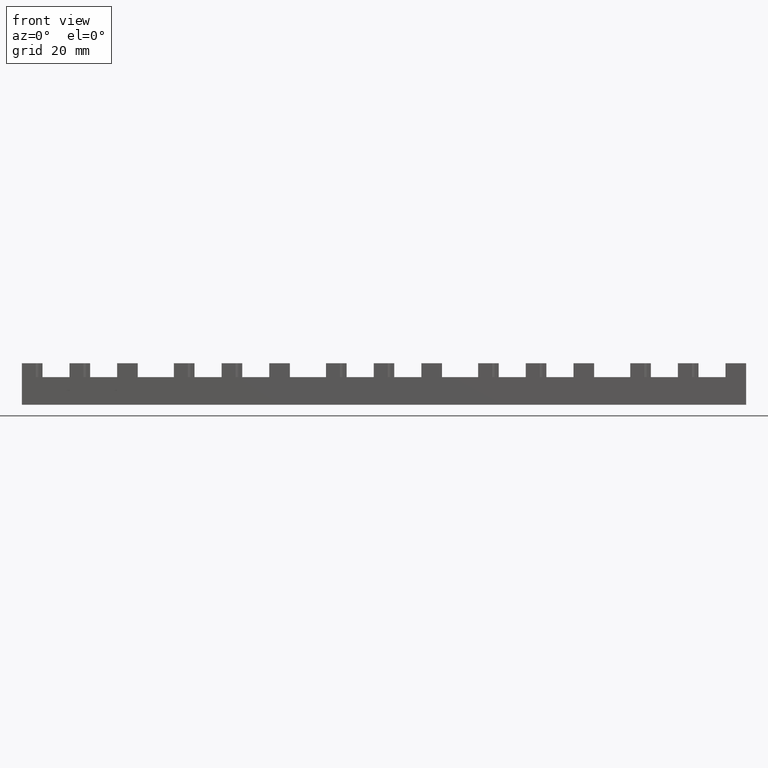
[diagram: clean part render]
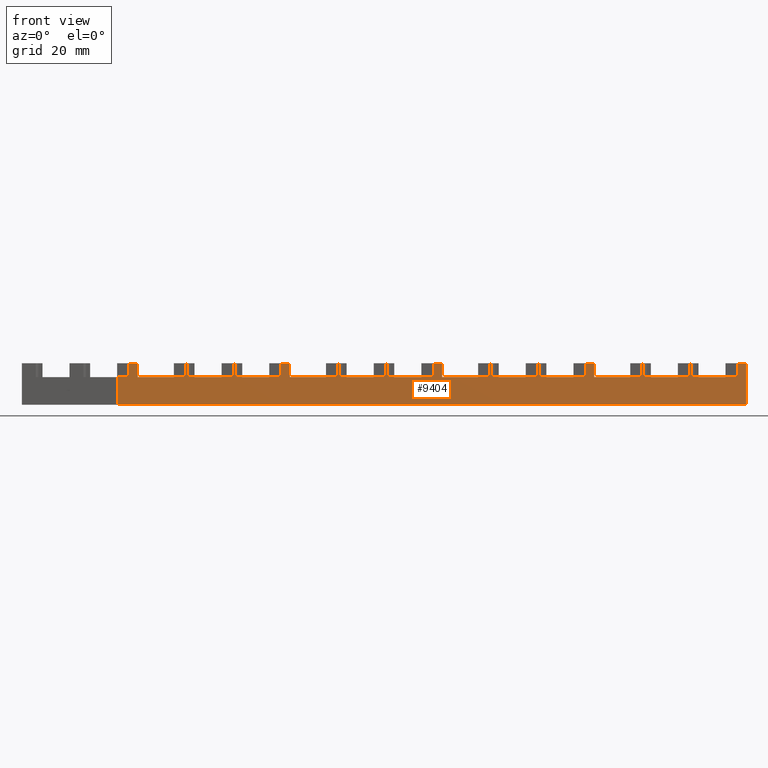
[diagram: same view with one face highlighted and labeled with its STEP entity id]
A machine part, front view. The second image highlights one B-rep face of the part: STEP entity #9404.
In plain terms, the highlighted planar face has unit normal (0, -1, 0).
Its self-contained STEP definition (entity closure, byte-faithful):
#5461=CARTESIAN_POINT('',(194.0999999999998,-7.999999999990964,103.99999999999096));
#5462=VERTEX_POINT('',#5461);
#5502=CARTESIAN_POINT('',(184.00000000000003,-7.999999999990864,103.99999999999103));
#5503=VERTEX_POINT('',#5502);
#5510=CARTESIAN_POINT('',(184.00000000000006,-7.999999999991028,103.99999999999103));
#5511=DIRECTION('',(1.0,0.0,0.0));
#5512=VECTOR('',#5511,10.099999999999795);
#5513=LINE('',#5510,#5512);
#5514=EDGE_CURVE('',#5503,#5462,#5513,.T.);
#5543=CARTESIAN_POINT('',(198.0999999999998,-7.999999999990992,103.99999999999093));
#5544=VERTEX_POINT('',#5543);
#5551=CARTESIAN_POINT('',(208.1999999999997,-7.999999999990878,103.99999999999085));
#5552=VERTEX_POINT('',#5551);
#5553=CARTESIAN_POINT('',(198.09999999999985,-7.999999999990934,103.99999999999093));
#5554=DIRECTION('',(1.0,0.0,0.0));
#5555=VECTOR('',#5554,10.099999999999909);
#5556=LINE('',#5553,#5555);
#5557=EDGE_CURVE('',#5544,#5552,#5556,.T.);
#5581=CARTESIAN_POINT('',(139.0,-7.999999999991162,103.99999999999132));
#5582=VERTEX_POINT('',#5581);
#5591=CARTESIAN_POINT('',(149.0999999999998,-7.999999999991262,103.99999999999125));
#5592=VERTEX_POINT('',#5591);
#5593=CARTESIAN_POINT('',(139.00000000000003,-7.999999999991327,103.99999999999133));
#5594=DIRECTION('',(1.0,0.0,0.0));
#5595=VECTOR('',#5594,10.099999999999795);
#5596=LINE('',#5593,#5595);
#5597=EDGE_CURVE('',#5582,#5592,#5596,.T.);
#5640=CARTESIAN_POINT('',(153.0999999999998,-7.999999999991291,103.99999999999123));
#5641=VERTEX_POINT('',#5640);
#5648=CARTESIAN_POINT('',(163.1999999999997,-7.999999999991177,103.99999999999118));
#5649=VERTEX_POINT('',#5648);
#5650=CARTESIAN_POINT('',(153.09999999999982,-7.999999999991234,103.99999999999123));
#5651=DIRECTION('',(1.0,0.0,0.0));
#5652=VECTOR('',#5651,10.099999999999909);
#5653=LINE('',#5650,#5652);
#5654=EDGE_CURVE('',#5641,#5649,#5653,.T.);
#5672=CARTESIAN_POINT('',(169.29999999999976,-7.999999999999021,103.99999999999112));
#5673=VERTEX_POINT('',#5672);
#5680=CARTESIAN_POINT('',(179.99999999999997,-7.999999999991063,103.99999999999103));
#5681=VERTEX_POINT('',#5680);
#5682=CARTESIAN_POINT('',(169.29999999999976,-7.999999999991125,103.99999999999113));
#5683=DIRECTION('',(1.0,0.0,0.0));
#5684=VECTOR('',#5683,10.700000000000216);
#5685=LINE('',#5682,#5684);
#5686=EDGE_CURVE('',#5673,#5681,#5685,.T.);
#5735=CARTESIAN_POINT('',(108.09999999999981,-7.999999999991588,103.99999999999153));
#5736=VERTEX_POINT('',#5735);
#5745=CARTESIAN_POINT('',(118.19999999999972,-7.999999999991475,103.99999999999146));
#5746=VERTEX_POINT('',#5745);
#5747=CARTESIAN_POINT('',(108.09999999999982,-7.999999999991532,103.99999999999154));
#5748=DIRECTION('',(1.0,0.0,0.0));
#5749=VECTOR('',#5748,10.099999999999909);
#5750=LINE('',#5747,#5749);
#5751=EDGE_CURVE('',#5736,#5746,#5750,.T.);
#5769=CARTESIAN_POINT('',(124.29999999999976,-7.99999999999932,103.99999999999142));
#5770=VERTEX_POINT('',#5769);
#5777=CARTESIAN_POINT('',(134.99999999999994,-7.999999999991362,103.99999999999136));
#5778=VERTEX_POINT('',#5777);
#5779=CARTESIAN_POINT('',(124.29999999999976,-7.999999999991425,103.99999999999143));
#5780=DIRECTION('',(1.0,0.0,0.0));
#5781=VECTOR('',#5780,10.700000000000216);
#5782=LINE('',#5779,#5781);
#5783=EDGE_CURVE('',#5770,#5778,#5782,.T.);
#5826=CARTESIAN_POINT('',(94.000000000000028,-7.999999999991461,103.99999999999164));
#5827=VERTEX_POINT('',#5826);
#5834=CARTESIAN_POINT('',(104.09999999999982,-7.999999999991561,103.99999999999156));
#5835=VERTEX_POINT('',#5834);
#5836=CARTESIAN_POINT('',(94.000000000000028,-7.999999999991626,103.99999999999164));
#5837=DIRECTION('',(1.0,0.0,0.0));
#5838=VECTOR('',#5837,10.099999999999795);
#5839=LINE('',#5836,#5838);
#5840=EDGE_CURVE('',#5827,#5835,#5839,.T.);
#5889=CARTESIAN_POINT('',(49.000000000000014,-7.99999999999176,103.99999999999194));
#5890=VERTEX_POINT('',#5889);
#5899=CARTESIAN_POINT('',(59.09999999999981,-7.999999999991859,103.99999999999187));
#5900=VERTEX_POINT('',#5899);
#5901=CARTESIAN_POINT('',(49.0,-7.999999999991925,103.99999999999194));
#5902=DIRECTION('',(1.0,0.0,0.0));
#5903=VECTOR('',#5902,10.099999999999795);
#5904=LINE('',#5901,#5903);
#5905=EDGE_CURVE('',#5890,#5900,#5904,.T.);
#5948=CARTESIAN_POINT('',(63.09999999999981,-7.999999999991887,103.99999999999183));
#5949=VERTEX_POINT('',#5948);
#5956=CARTESIAN_POINT('',(73.199999999999719,-7.999999999991774,103.99999999999179));
#5957=VERTEX_POINT('',#5956);
#5958=CARTESIAN_POINT('',(63.099999999999795,-7.999999999991831,103.99999999999184));
#5959=DIRECTION('',(1.0,0.0,0.0));
#5960=VECTOR('',#5959,10.099999999999909);
#5961=LINE('',#5958,#5960);
#5962=EDGE_CURVE('',#5949,#5957,#5961,.T.);
#5980=CARTESIAN_POINT('',(79.299999999999741,-7.999999999999617,103.99999999999174));
#5981=VERTEX_POINT('',#5980);
#5988=CARTESIAN_POINT('',(89.999999999999972,-7.999999999991659,103.99999999999167));
#5989=VERTEX_POINT('',#5988);
#5990=CARTESIAN_POINT('',(79.299999999999727,-7.999999999991724,103.99999999999174));
#5991=DIRECTION('',(1.0,0.0,0.0));
#5992=VECTOR('',#5991,10.700000000000244);
#5993=LINE('',#5990,#5992);
#5994=EDGE_CURVE('',#5981,#5989,#5993,.T.);
#6069=CARTESIAN_POINT('',(34.299999999999734,-7.999999999999917,103.99999999999203));
#6070=VERTEX_POINT('',#6069);
#6077=CARTESIAN_POINT('',(44.999999999999957,-7.999999999991958,103.99999999999196));
#6078=VERTEX_POINT('',#6077);
#6079=CARTESIAN_POINT('',(34.299999999999727,-7.999999999992022,103.99999999999204));
#6080=DIRECTION('',(1.0,0.0,0.0));
#6081=VECTOR('',#6080,10.700000000000216);
#6082=LINE('',#6079,#6081);
#6083=EDGE_CURVE('',#6070,#6078,#6082,.T.);
#6236=CARTESIAN_POINT('',(214.29999999999967,-7.999999999990836,95.799999999990803));
#6237=VERTEX_POINT('',#6236);
#6244=CARTESIAN_POINT('',(28.199999999999648,-7.999999999992072,95.799999999992082));
#6245=VERTEX_POINT('',#6244);
#6246=CARTESIAN_POINT('',(214.29999999999973,-7.99999999999083,95.799999999990817));
#6247=DIRECTION('',(-1.0,0.0,0.0));
#6248=VECTOR('',#6247,186.10000000000008);
#6249=LINE('',#6246,#6248);
#6250=EDGE_CURVE('',#6237,#6245,#6249,.T.);
#6594=CARTESIAN_POINT('',(34.299999999999763,-7.999999999999917,108.09999999999205));
#6595=VERTEX_POINT('',#6594);
#6602=CARTESIAN_POINT('',(34.299999999999734,-7.999999999999917,103.99999999999203));
#6603=DIRECTION('',(0.0,0.0,1.0));
#6604=VECTOR('',#6603,4.100000000000009);
#6605=LINE('',#6602,#6604);
#6606=EDGE_CURVE('',#6070,#6595,#6605,.T.);
#6618=CARTESIAN_POINT('',(31.699999999999843,-7.999999999999931,108.09999999999206));
#6619=VERTEX_POINT('',#6618);
#6636=CARTESIAN_POINT('',(31.699999999999822,-7.999999999999931,103.99999999999207));
#6637=VERTEX_POINT('',#6636);
#6644=CARTESIAN_POINT('',(31.699999999999822,-7.999999999999931,103.99999999999207));
#6645=DIRECTION('',(0.0,0.0,1.0));
#6646=VECTOR('',#6645,4.100000000000009);
#6647=LINE('',#6644,#6646);
#6648=EDGE_CURVE('',#6637,#6619,#6647,.T.);
#6703=CARTESIAN_POINT('',(28.199999999999704,-7.999999999992072,103.99999999999208));
#6704=VERTEX_POINT('',#6703);
#6705=CARTESIAN_POINT('',(28.199999999999708,-7.999999999992072,103.99999999999207));
#6706=DIRECTION('',(0.0,0.0,-1.0));
#6707=VECTOR('',#6706,8.200000000000003);
#6708=LINE('',#6705,#6707);
#6709=EDGE_CURVE('',#6704,#6245,#6708,.T.);
#6730=CARTESIAN_POINT('',(34.299999999999763,-7.999999999999917,108.09999999999205));
#6731=DIRECTION('',(-1.0,0.0,0.0));
#6732=VECTOR('',#6731,2.599999999999909);
#6733=LINE('',#6730,#6732);
#6734=EDGE_CURVE('',#6595,#6619,#6733,.T.);
#6745=CARTESIAN_POINT('',(28.199999999999712,-7.999999999992071,103.99999999999207));
#6746=DIRECTION('',(1.0,0.0,0.0));
#6747=VECTOR('',#6746,3.500000000000114);
#6748=LINE('',#6745,#6747);
#6749=EDGE_CURVE('',#6704,#6637,#6748,.T.);
#6794=CARTESIAN_POINT('',(63.099999999999838,-7.999999999991887,108.09999999999184));
#6795=VERTEX_POINT('',#6794);
#6802=CARTESIAN_POINT('',(63.09999999999981,-7.999999999991887,103.99999999999183));
#6803=DIRECTION('',(0.0,0.0,1.0));
#6804=VECTOR('',#6803,4.099999999999994);
#6805=LINE('',#6802,#6804);
#6806=EDGE_CURVE('',#5949,#6795,#6805,.T.);
#6818=CARTESIAN_POINT('',(62.600000000000058,-7.999999999991902,108.09999999999185));
#6819=VERTEX_POINT('',#6818);
#6836=CARTESIAN_POINT('',(62.600000000000037,-7.999999999991902,103.99999999999184));
#6837=VERTEX_POINT('',#6836);
#6844=CARTESIAN_POINT('',(62.600000000000037,-7.999999999991902,103.99999999999184));
#6845=DIRECTION('',(0.0,0.0,1.0));
#6846=VECTOR('',#6845,4.099999999999994);
#6847=LINE('',#6844,#6846);
#6848=EDGE_CURVE('',#6837,#6819,#6847,.T.);
#6991=CARTESIAN_POINT('',(63.099999999999831,-7.999999999991898,108.09999999999185));
#6992=DIRECTION('',(-1.0,0.0,0.0));
#6993=VECTOR('',#6992,0.499999999999773);
#6994=LINE('',#6991,#6993);
#6995=EDGE_CURVE('',#6795,#6819,#6994,.T.);
#7006=CARTESIAN_POINT('',(59.09999999999981,-7.999999999991868,103.99999999999187));
#7007=DIRECTION('',(1.0,0.0,0.0));
#7008=VECTOR('',#7007,3.500000000000227);
#7009=LINE('',#7006,#7008);
#7010=EDGE_CURVE('',#5900,#6837,#7009,.T.);
#7023=CARTESIAN_POINT('',(93.500000000000057,-7.999999999991688,108.09999999999164));
#7024=VERTEX_POINT('',#7023);
#7041=CARTESIAN_POINT('',(93.500000000000014,-7.999999999991688,103.99999999999164));
#7042=VERTEX_POINT('',#7041);
#7049=CARTESIAN_POINT('',(93.500000000000014,-7.999999999991688,103.99999999999164));
#7050=DIRECTION('',(0.0,0.0,1.0));
#7051=VECTOR('',#7050,4.099999999999994);
#7052=LINE('',#7049,#7051);
#7053=EDGE_CURVE('',#7042,#7024,#7052,.T.);
#7204=CARTESIAN_POINT('',(94.000000000000043,-7.999999999991461,108.09999999999164));
#7205=VERTEX_POINT('',#7204);
#7212=CARTESIAN_POINT('',(94.000000000000028,-7.999999999991461,103.99999999999164));
#7213=DIRECTION('',(0.0,0.0,1.0));
#7214=VECTOR('',#7213,4.099999999999994);
#7215=LINE('',#7212,#7214);
#7216=EDGE_CURVE('',#5827,#7205,#7215,.T.);
#7228=CARTESIAN_POINT('',(94.000000000000057,-7.999999999991458,108.09999999999164));
#7229=DIRECTION('',(-1.0,-4.618528E-013,0.0));
#7230=VECTOR('',#7229,0.5);
#7231=LINE('',#7228,#7230);
#7232=EDGE_CURVE('',#7205,#7024,#7231,.T.);
#7255=CARTESIAN_POINT('',(89.999999999999957,-7.999999999991652,103.99999999999166));
#7256=DIRECTION('',(1.0,0.0,0.0));
#7257=VECTOR('',#7256,3.500000000000057);
#7258=LINE('',#7255,#7257);
#7259=EDGE_CURVE('',#5989,#7042,#7258,.T.);
#7303=CARTESIAN_POINT('',(124.29999999999978,-7.99999999999932,108.09999999999143));
#7304=VERTEX_POINT('',#7303);
#7311=CARTESIAN_POINT('',(124.29999999999976,-7.99999999999932,103.99999999999142));
#7312=DIRECTION('',(0.0,0.0,1.0));
#7313=VECTOR('',#7312,4.100000000000009);
#7314=LINE('',#7311,#7313);
#7315=EDGE_CURVE('',#5770,#7304,#7314,.T.);
#7327=CARTESIAN_POINT('',(121.69999999999987,-7.999999999999333,108.09999999999144));
#7328=VERTEX_POINT('',#7327);
#7345=CARTESIAN_POINT('',(121.69999999999985,-7.999999999999333,103.99999999999145));
#7346=VERTEX_POINT('',#7345);
#7353=CARTESIAN_POINT('',(121.69999999999985,-7.999999999999333,103.99999999999145));
#7354=DIRECTION('',(0.0,0.0,1.0));
#7355=VECTOR('',#7354,4.100000000000009);
#7356=LINE('',#7353,#7355);
#7357=EDGE_CURVE('',#7346,#7328,#7356,.T.);
#7425=CARTESIAN_POINT('',(124.29999999999978,-7.99999999999932,108.09999999999143));
#7426=DIRECTION('',(-1.0,0.0,0.0));
#7427=VECTOR('',#7426,2.599999999999909);
#7428=LINE('',#7425,#7427);
#7429=EDGE_CURVE('',#7304,#7328,#7428,.T.);
#7440=CARTESIAN_POINT('',(118.19999999999973,-7.999999999991474,103.99999999999147));
#7441=DIRECTION('',(1.0,0.0,0.0));
#7442=VECTOR('',#7441,3.500000000000114);
#7443=LINE('',#7440,#7442);
#7444=EDGE_CURVE('',#5746,#7346,#7443,.T.);
#7489=CARTESIAN_POINT('',(153.09999999999982,-7.999999999991291,108.09999999999121));
#7490=VERTEX_POINT('',#7489);
#7497=CARTESIAN_POINT('',(153.0999999999998,-7.999999999991291,103.99999999999123));
#7498=DIRECTION('',(0.0,0.0,1.0));
#7499=VECTOR('',#7498,4.099999999999994);
#7500=LINE('',#7497,#7499);
#7501=EDGE_CURVE('',#5641,#7490,#7500,.T.);
#7513=CARTESIAN_POINT('',(152.60000000000005,-7.999999999991291,108.09999999999123));
#7514=VERTEX_POINT('',#7513);
#7531=CARTESIAN_POINT('',(152.60000000000002,-7.999999999991304,103.99999999999125));
#7532=VERTEX_POINT('',#7531);
#7539=CARTESIAN_POINT('',(152.60000000000002,-7.999999999991304,103.99999999999125));
#7540=DIRECTION('',(0.0,0.0,1.0));
#7541=VECTOR('',#7540,4.099999999999994);
#7542=LINE('',#7539,#7541);
#7543=EDGE_CURVE('',#7532,#7514,#7542,.T.);
#7686=CARTESIAN_POINT('',(153.09999999999982,-7.999999999991287,108.09999999999123));
#7687=DIRECTION('',(-1.0,0.0,0.0));
#7688=VECTOR('',#7687,0.499999999999773);
#7689=LINE('',#7686,#7688);
#7690=EDGE_CURVE('',#7490,#7514,#7689,.T.);
#7701=CARTESIAN_POINT('',(149.09999999999982,-7.999999999991272,103.99999999999125));
#7702=DIRECTION('',(1.0,0.0,0.0));
#7703=VECTOR('',#7702,3.500000000000227);
#7704=LINE('',#7701,#7703);
#7705=EDGE_CURVE('',#5592,#7532,#7704,.T.);
#7718=CARTESIAN_POINT('',(183.50000000000006,-7.999999999991091,108.09999999999101));
#7719=VERTEX_POINT('',#7718);
#7736=CARTESIAN_POINT('',(183.5,-7.999999999991091,103.99999999999103));
#7737=VERTEX_POINT('',#7736);
#7744=CARTESIAN_POINT('',(183.5,-7.999999999991091,103.99999999999103));
#7745=DIRECTION('',(0.0,0.0,1.0));
#7746=VECTOR('',#7745,4.099999999999994);
#7747=LINE('',#7744,#7746);
#7748=EDGE_CURVE('',#7737,#7719,#7747,.T.);
#7906=CARTESIAN_POINT('',(184.00000000000003,-7.999999999990864,108.09999999999101));
#7907=VERTEX_POINT('',#7906);
#7914=CARTESIAN_POINT('',(184.00000000000003,-7.999999999990864,103.99999999999103));
#7915=DIRECTION('',(0.0,0.0,1.0));
#7916=VECTOR('',#7915,4.099999999999994);
#7917=LINE('',#7914,#7916);
#7918=EDGE_CURVE('',#5503,#7907,#7917,.T.);
#7930=CARTESIAN_POINT('',(184.00000000000006,-7.99999999999086,108.09999999999101));
#7931=DIRECTION('',(-1.0,-4.618528E-013,0.0));
#7932=VECTOR('',#7931,0.5);
#7933=LINE('',#7930,#7932);
#7934=EDGE_CURVE('',#7907,#7719,#7933,.T.);
#7957=CARTESIAN_POINT('',(179.99999999999994,-7.999999999991055,103.99999999999105));
#7958=DIRECTION('',(1.0,0.0,0.0));
#7959=VECTOR('',#7958,3.500000000000057);
#7960=LINE('',#7957,#7959);
#7961=EDGE_CURVE('',#5681,#7737,#7960,.T.);
#8012=CARTESIAN_POINT('',(214.29999999999978,-7.999999999998723,108.09999999999081));
#8013=VERTEX_POINT('',#8012);
#8020=CARTESIAN_POINT('',(214.29999999999978,-7.999999999990836,108.09999999999081));
#8021=DIRECTION('',(0.0,0.0,-1.0));
#8022=VECTOR('',#8021,12.300000000000011);
#8023=LINE('',#8020,#8022);
#8024=EDGE_CURVE('',#8013,#6237,#8023,.T.);
#8036=CARTESIAN_POINT('',(211.69999999999987,-7.999999999998737,108.09999999999084));
#8037=VERTEX_POINT('',#8036);
#8054=CARTESIAN_POINT('',(211.69999999999985,-7.999999999998737,103.99999999999082));
#8055=VERTEX_POINT('',#8054);
#8062=CARTESIAN_POINT('',(211.69999999999985,-7.999999999998737,103.99999999999082));
#8063=DIRECTION('',(0.0,0.0,1.0));
#8064=VECTOR('',#8063,4.100000000000009);
#8065=LINE('',#8062,#8064);
#8066=EDGE_CURVE('',#8055,#8037,#8065,.T.);
#8134=CARTESIAN_POINT('',(214.29999999999978,-7.999999999998723,108.09999999999081));
#8135=DIRECTION('',(-1.0,0.0,0.0));
#8136=VECTOR('',#8135,2.599999999999909);
#8137=LINE('',#8134,#8136);
#8138=EDGE_CURVE('',#8013,#8037,#8137,.T.);
#8149=CARTESIAN_POINT('',(208.1999999999997,-7.999999999990876,103.99999999999086));
#8150=DIRECTION('',(1.0,0.0,0.0));
#8151=VECTOR('',#8150,3.500000000000114);
#8152=LINE('',#8149,#8151);
#8153=EDGE_CURVE('',#5552,#8055,#8152,.T.);
#8198=CARTESIAN_POINT('',(198.09999999999985,-7.999999999990992,108.09999999999093));
#8199=VERTEX_POINT('',#8198);
#8206=CARTESIAN_POINT('',(198.0999999999998,-7.999999999990992,103.99999999999093));
#8207=DIRECTION('',(0.0,0.0,1.0));
#8208=VECTOR('',#8207,4.099999999999994);
#8209=LINE('',#8206,#8208);
#8210=EDGE_CURVE('',#5544,#8199,#8209,.T.);
#8222=CARTESIAN_POINT('',(197.60000000000005,-7.999999999990992,108.09999999999093));
#8223=VERTEX_POINT('',#8222);
#8240=CARTESIAN_POINT('',(197.60000000000002,-7.999999999990992,103.99999999999093));
#8241=VERTEX_POINT('',#8240);
#8248=CARTESIAN_POINT('',(197.60000000000002,-7.999999999990992,103.99999999999093));
#8249=DIRECTION('',(0.0,0.0,1.0));
#8250=VECTOR('',#8249,4.099999999999994);
#8251=LINE('',#8248,#8250);
#8252=EDGE_CURVE('',#8241,#8223,#8251,.T.);
#8398=CARTESIAN_POINT('',(198.09999999999982,-7.999999999990989,108.09999999999093));
#8399=DIRECTION('',(-1.0,0.0,0.0));
#8400=VECTOR('',#8399,0.499999999999773);
#8401=LINE('',#8398,#8400);
#8402=EDGE_CURVE('',#8199,#8223,#8401,.T.);
#8413=CARTESIAN_POINT('',(194.0999999999998,-7.999999999990965,103.99999999999095));
#8414=DIRECTION('',(1.0,0.0,0.0));
#8415=VECTOR('',#8414,3.500000000000227);
#8416=LINE('',#8413,#8415);
#8417=EDGE_CURVE('',#5462,#8241,#8416,.T.);
#8461=CARTESIAN_POINT('',(169.29999999999976,-7.999999999999021,108.09999999999113));
#8462=VERTEX_POINT('',#8461);
#8469=CARTESIAN_POINT('',(169.29999999999976,-7.999999999999021,103.99999999999112));
#8470=DIRECTION('',(0.0,0.0,1.0));
#8471=VECTOR('',#8470,4.100000000000009);
#8472=LINE('',#8469,#8471);
#8473=EDGE_CURVE('',#5673,#8462,#8472,.T.);
#8485=CARTESIAN_POINT('',(166.69999999999985,-7.999999999999035,108.09999999999114));
#8486=VERTEX_POINT('',#8485);
#8503=CARTESIAN_POINT('',(166.69999999999985,-7.999999999999035,103.99999999999113));
#8504=VERTEX_POINT('',#8503);
#8511=CARTESIAN_POINT('',(166.69999999999985,-7.999999999999035,103.99999999999113));
#8512=DIRECTION('',(0.0,0.0,1.0));
#8513=VECTOR('',#8512,4.100000000000009);
#8514=LINE('',#8511,#8513);
#8515=EDGE_CURVE('',#8504,#8486,#8514,.T.);
#8583=CARTESIAN_POINT('',(169.29999999999976,-7.999999999999021,108.09999999999113));
#8584=DIRECTION('',(-1.0,0.0,0.0));
#8585=VECTOR('',#8584,2.599999999999909);
#8586=LINE('',#8583,#8585);
#8587=EDGE_CURVE('',#8462,#8486,#8586,.T.);
#8598=CARTESIAN_POINT('',(163.1999999999997,-7.999999999991168,103.99999999999118));
#8599=DIRECTION('',(1.0,0.0,0.0));
#8600=VECTOR('',#8599,3.500000000000114);
#8601=LINE('',#8598,#8600);
#8602=EDGE_CURVE('',#5649,#8504,#8601,.T.);
#8615=CARTESIAN_POINT('',(138.50000000000003,-7.99999999999139,108.09999999999133));
#8616=VERTEX_POINT('',#8615);
#8633=CARTESIAN_POINT('',(138.5,-7.99999999999139,103.99999999999132));
#8634=VERTEX_POINT('',#8633);
#8641=CARTESIAN_POINT('',(138.5,-7.99999999999139,103.99999999999132));
#8642=DIRECTION('',(0.0,0.0,1.0));
#8643=VECTOR('',#8642,4.099999999999994);
#8644=LINE('',#8641,#8643);
#8645=EDGE_CURVE('',#8634,#8616,#8644,.T.);
#8796=CARTESIAN_POINT('',(139.00000000000003,-7.999999999991162,108.09999999999133));
#8797=VERTEX_POINT('',#8796);
#8804=CARTESIAN_POINT('',(139.0,-7.999999999991162,103.99999999999132));
#8805=DIRECTION('',(0.0,0.0,1.0));
#8806=VECTOR('',#8805,4.099999999999994);
#8807=LINE('',#8804,#8806);
#8808=EDGE_CURVE('',#5582,#8797,#8807,.T.);
#8820=CARTESIAN_POINT('',(139.00000000000003,-7.999999999991159,108.09999999999133));
#8821=DIRECTION('',(-1.0,-4.618528E-013,0.0));
#8822=VECTOR('',#8821,0.5);
#8823=LINE('',#8820,#8822);
#8824=EDGE_CURVE('',#8797,#8616,#8823,.T.);
#8847=CARTESIAN_POINT('',(134.99999999999997,-7.999999999991361,103.99999999999135));
#8848=DIRECTION('',(1.0,0.0,0.0));
#8849=VECTOR('',#8848,3.500000000000057);
#8850=LINE('',#8847,#8849);
#8851=EDGE_CURVE('',#5778,#8634,#8850,.T.);
#8896=CARTESIAN_POINT('',(108.09999999999985,-7.999999999991588,108.09999999999152));
#8897=VERTEX_POINT('',#8896);
#8904=CARTESIAN_POINT('',(108.09999999999981,-7.999999999991588,103.99999999999153));
#8905=DIRECTION('',(0.0,0.0,1.0));
#8906=VECTOR('',#8905,4.099999999999994);
#8907=LINE('',#8904,#8906);
#8908=EDGE_CURVE('',#5736,#8897,#8907,.T.);
#8920=CARTESIAN_POINT('',(107.60000000000007,-7.999999999991603,108.09999999999152));
#8921=VERTEX_POINT('',#8920);
#8938=CARTESIAN_POINT('',(107.60000000000005,-7.999999999991603,103.99999999999153));
#8939=VERTEX_POINT('',#8938);
#8946=CARTESIAN_POINT('',(107.60000000000005,-7.999999999991603,103.99999999999153));
#8947=DIRECTION('',(0.0,0.0,1.0));
#8948=VECTOR('',#8947,4.099999999999994);
#8949=LINE('',#8946,#8948);
#8950=EDGE_CURVE('',#8939,#8921,#8949,.T.);
#9093=CARTESIAN_POINT('',(108.09999999999984,-7.9999999999916,108.09999999999152));
#9094=DIRECTION('',(-1.0,0.0,0.0));
#9095=VECTOR('',#9094,0.499999999999773);
#9096=LINE('',#9093,#9095);
#9097=EDGE_CURVE('',#8897,#8921,#9096,.T.);
#9108=CARTESIAN_POINT('',(104.09999999999982,-7.999999999991563,103.99999999999157));
#9109=DIRECTION('',(1.0,0.0,0.0));
#9110=VECTOR('',#9109,3.500000000000227);
#9111=LINE('',#9108,#9110);
#9112=EDGE_CURVE('',#5835,#8939,#9111,.T.);
#9156=CARTESIAN_POINT('',(79.29999999999977,-7.999999999999617,108.09999999999172));
#9157=VERTEX_POINT('',#9156);
#9164=CARTESIAN_POINT('',(79.299999999999741,-7.999999999999617,103.99999999999174));
#9165=DIRECTION('',(0.0,0.0,1.0));
#9166=VECTOR('',#9165,4.100000000000009);
#9167=LINE('',#9164,#9166);
#9168=EDGE_CURVE('',#5981,#9157,#9167,.T.);
#9180=CARTESIAN_POINT('',(76.699999999999861,-7.999999999999632,108.09999999999175));
#9181=VERTEX_POINT('',#9180);
#9198=CARTESIAN_POINT('',(76.699999999999832,-7.999999999999632,103.99999999999174));
#9199=VERTEX_POINT('',#9198);
#9206=CARTESIAN_POINT('',(76.699999999999832,-7.999999999999632,103.99999999999174));
#9207=DIRECTION('',(0.0,0.0,1.0));
#9208=VECTOR('',#9207,4.100000000000009);
#9209=LINE('',#9206,#9208);
#9210=EDGE_CURVE('',#9199,#9181,#9209,.T.);
#9278=CARTESIAN_POINT('',(79.29999999999977,-7.999999999999617,108.09999999999172));
#9279=DIRECTION('',(-1.0,0.0,0.0));
#9280=VECTOR('',#9279,2.599999999999909);
#9281=LINE('',#9278,#9280);
#9282=EDGE_CURVE('',#9157,#9181,#9281,.T.);
#9293=CARTESIAN_POINT('',(73.199999999999733,-7.999999999991766,103.99999999999177));
#9294=DIRECTION('',(1.0,0.0,0.0));
#9295=VECTOR('',#9294,3.500000000000114);
#9296=LINE('',#9293,#9295);
#9297=EDGE_CURVE('',#5957,#9199,#9296,.T.);
#9305=CARTESIAN_POINT('',(49.000000000000014,-7.99999999999176,103.99999999999194));
#9306=DIRECTION('',(4.613908E-013,-1.0,3.835365E-017));
#9307=DIRECTION('',(0.0,0.0,-1.0));
#9308=AXIS2_PLACEMENT_3D('',#9305,#9306,#9307);
#9309=PLANE('',#9308);
#9310=CARTESIAN_POINT('',(49.000000000000043,-7.99999999999176,108.09999999999192));
#9311=VERTEX_POINT('',#9310);
#9312=CARTESIAN_POINT('',(48.500000000000043,-7.999999999991987,108.09999999999192));
#9313=VERTEX_POINT('',#9312);
#9314=CARTESIAN_POINT('',(49.000000000000043,-7.999999999991756,108.09999999999192));
#9315=DIRECTION('',(-1.0,-4.618528E-013,0.0));
#9316=VECTOR('',#9315,0.5);
#9317=LINE('',#9314,#9316);
#9318=EDGE_CURVE('',#9311,#9313,#9317,.T.);
#9319=ORIENTED_EDGE('',*,*,#9318,.T.);
#9320=CARTESIAN_POINT('',(48.500000000000007,-7.999999999991987,103.99999999999194));
#9321=VERTEX_POINT('',#9320);
#9322=CARTESIAN_POINT('',(48.500000000000007,-7.999999999991987,103.99999999999194));
#9323=DIRECTION('',(0.0,0.0,1.0));
#9324=VECTOR('',#9323,4.099999999999994);
#9325=LINE('',#9322,#9324);
#9326=EDGE_CURVE('',#9321,#9313,#9325,.T.);
#9327=ORIENTED_EDGE('',*,*,#9326,.F.);
#9328=CARTESIAN_POINT('',(44.99999999999995,-7.999999999991958,103.99999999999197));
#9329=DIRECTION('',(1.0,0.0,0.0));
#9330=VECTOR('',#9329,3.500000000000057);
#9331=LINE('',#9328,#9330);
#9332=EDGE_CURVE('',#6078,#9321,#9331,.T.);
#9333=ORIENTED_EDGE('',*,*,#9332,.F.);
#9334=ORIENTED_EDGE('',*,*,#6083,.F.);
#9335=ORIENTED_EDGE('',*,*,#6606,.T.);
#9336=ORIENTED_EDGE('',*,*,#6734,.T.);
#9337=ORIENTED_EDGE('',*,*,#6648,.F.);
#9338=ORIENTED_EDGE('',*,*,#6749,.F.);
#9339=ORIENTED_EDGE('',*,*,#6709,.T.);
#9340=ORIENTED_EDGE('',*,*,#6250,.F.);
#9341=ORIENTED_EDGE('',*,*,#8024,.F.);
#9342=ORIENTED_EDGE('',*,*,#8138,.T.);
#9343=ORIENTED_EDGE('',*,*,#8066,.F.);
#9344=ORIENTED_EDGE('',*,*,#8153,.F.);
#9345=ORIENTED_EDGE('',*,*,#5557,.F.);
#9346=ORIENTED_EDGE('',*,*,#8210,.T.);
#9347=ORIENTED_EDGE('',*,*,#8402,.T.);
#9348=ORIENTED_EDGE('',*,*,#8252,.F.);
#9349=ORIENTED_EDGE('',*,*,#8417,.F.);
#9350=ORIENTED_EDGE('',*,*,#5514,.F.);
#9351=ORIENTED_EDGE('',*,*,#7918,.T.);
#9352=ORIENTED_EDGE('',*,*,#7934,.T.);
#9353=ORIENTED_EDGE('',*,*,#7748,.F.);
#9354=ORIENTED_EDGE('',*,*,#7961,.F.);
#9355=ORIENTED_EDGE('',*,*,#5686,.F.);
#9356=ORIENTED_EDGE('',*,*,#8473,.T.);
#9357=ORIENTED_EDGE('',*,*,#8587,.T.);
#9358=ORIENTED_EDGE('',*,*,#8515,.F.);
#9359=ORIENTED_EDGE('',*,*,#8602,.F.);
#9360=ORIENTED_EDGE('',*,*,#5654,.F.);
#9361=ORIENTED_EDGE('',*,*,#7501,.T.);
#9362=ORIENTED_EDGE('',*,*,#7690,.T.);
#9363=ORIENTED_EDGE('',*,*,#7543,.F.);
#9364=ORIENTED_EDGE('',*,*,#7705,.F.);
#9365=ORIENTED_EDGE('',*,*,#5597,.F.);
#9366=ORIENTED_EDGE('',*,*,#8808,.T.);
#9367=ORIENTED_EDGE('',*,*,#8824,.T.);
#9368=ORIENTED_EDGE('',*,*,#8645,.F.);
#9369=ORIENTED_EDGE('',*,*,#8851,.F.);
#9370=ORIENTED_EDGE('',*,*,#5783,.F.);
#9371=ORIENTED_EDGE('',*,*,#7315,.T.);
#9372=ORIENTED_EDGE('',*,*,#7429,.T.);
#9373=ORIENTED_EDGE('',*,*,#7357,.F.);
#9374=ORIENTED_EDGE('',*,*,#7444,.F.);
#9375=ORIENTED_EDGE('',*,*,#5751,.F.);
#9376=ORIENTED_EDGE('',*,*,#8908,.T.);
#9377=ORIENTED_EDGE('',*,*,#9097,.T.);
#9378=ORIENTED_EDGE('',*,*,#8950,.F.);
#9379=ORIENTED_EDGE('',*,*,#9112,.F.);
#9380=ORIENTED_EDGE('',*,*,#5840,.F.);
#9381=ORIENTED_EDGE('',*,*,#7216,.T.);
#9382=ORIENTED_EDGE('',*,*,#7232,.T.);
#9383=ORIENTED_EDGE('',*,*,#7053,.F.);
#9384=ORIENTED_EDGE('',*,*,#7259,.F.);
#9385=ORIENTED_EDGE('',*,*,#5994,.F.);
#9386=ORIENTED_EDGE('',*,*,#9168,.T.);
#9387=ORIENTED_EDGE('',*,*,#9282,.T.);
#9388=ORIENTED_EDGE('',*,*,#9210,.F.);
#9389=ORIENTED_EDGE('',*,*,#9297,.F.);
#9390=ORIENTED_EDGE('',*,*,#5962,.F.);
#9391=ORIENTED_EDGE('',*,*,#6806,.T.);
#9392=ORIENTED_EDGE('',*,*,#6995,.T.);
#9393=ORIENTED_EDGE('',*,*,#6848,.F.);
#9394=ORIENTED_EDGE('',*,*,#7010,.F.);
#9395=ORIENTED_EDGE('',*,*,#5905,.F.);
#9396=CARTESIAN_POINT('',(49.000000000000014,-7.99999999999176,103.99999999999194));
#9397=DIRECTION('',(0.0,0.0,1.0));
#9398=VECTOR('',#9397,4.099999999999994);
#9399=LINE('',#9396,#9398);
#9400=EDGE_CURVE('',#5890,#9311,#9399,.T.);
#9401=ORIENTED_EDGE('',*,*,#9400,.T.);
#9402=EDGE_LOOP('',(#9319,#9327,#9333,#9334,#9335,#9336,#9337,#9338,#9339,#9340,#9341,#9342,#9343,#9344,#9345,#9346,#9347,#9348,#9349,#9350,#9351,#9352,#9353,#9354,#9355,#9356,#9357,#9358,#9359,#9360,#9361,#9362,#9363,#9364,#9365,#9366,#9367,#9368,#9369,#9370,#9371,#9372,#9373,#9374,#9375,#9376,#9377,#9378,#9379,#9380,#9381,#9382,#9383,#9384,#9385,#9386,#9387,#9388,#9389,#9390,#9391,#9392,#9393,#9394,#9395,#9401));
#9403=FACE_OUTER_BOUND('',#9402,.T.);
#9404=ADVANCED_FACE('',(#9403),#9309,.T.);